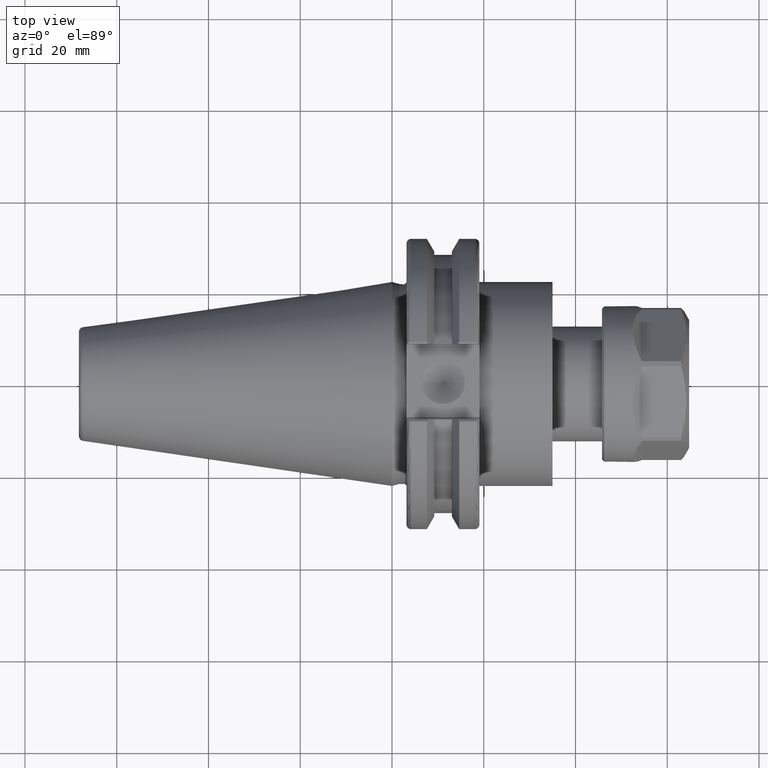
[diagram: clean part render]
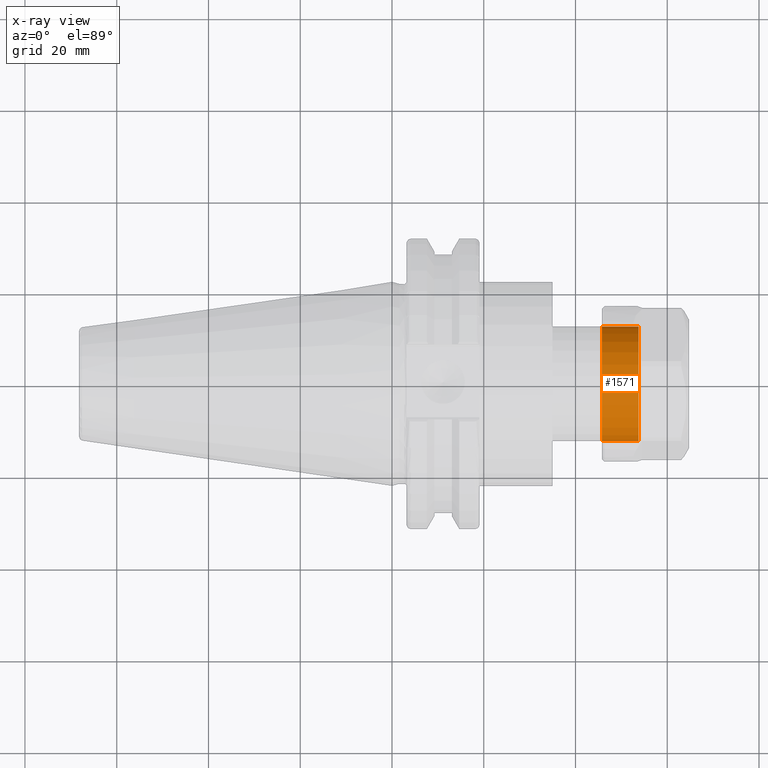
[diagram: x-ray — body ghosted, one internal face saturated and labeled with its STEP entity id]
A machine part, top view, then the same camera in x-ray: the body is ghosted and one INTERNAL B-rep face — a face not visible from any outside direction — is saturated and labeled: STEP entity #1571.
In plain terms, the highlighted cylindrical surface (bore or boss wall) has radius 12.5 mm, axis along (-1, 0, 0).
Its self-contained STEP definition (entity closure, byte-faithful):
#279=FACE_OUTER_BOUND('',#383,.T.);
#383=EDGE_LOOP('',(#1456,#1457,#1458,#1459));
#484=LINE('',#2871,#583);
#583=VECTOR('',#2265,12.5);
#656=CIRCLE('',#1817,12.5);
#657=CIRCLE('',#1818,12.5);
#801=VERTEX_POINT('',#2868);
#802=VERTEX_POINT('',#2870);
#1020=EDGE_CURVE('',#801,#801,#656,.T.);
#1021=EDGE_CURVE('',#801,#802,#484,.T.);
#1022=EDGE_CURVE('',#802,#802,#657,.T.);
#1456=ORIENTED_EDGE('',*,*,#1020,.F.);
#1457=ORIENTED_EDGE('',*,*,#1021,.T.);
#1458=ORIENTED_EDGE('',*,*,#1022,.T.);
#1459=ORIENTED_EDGE('',*,*,#1021,.F.);
#1482=CYLINDRICAL_SURFACE('',#1816,12.5);
#1571=ADVANCED_FACE('',(#279),#1482,.T.);
#1816=AXIS2_PLACEMENT_3D('',#2867,#2261,#2262);
#1817=AXIS2_PLACEMENT_3D('',#2869,#2263,#2264);
#1818=AXIS2_PLACEMENT_3D('',#2872,#2266,#2267);
#2261=DIRECTION('center_axis',(-1.,0.,0.));
#2262=DIRECTION('ref_axis',(0.,-1.,0.));
#2263=DIRECTION('center_axis',(-1.,0.,0.));
#2264=DIRECTION('ref_axis',(0.,1.,0.));
#2265=DIRECTION('',(1.,0.,0.));
#2266=DIRECTION('center_axis',(-1.,0.,0.));
#2267=DIRECTION('ref_axis',(0.,1.,0.));
#2867=CARTESIAN_POINT('Origin',(-9.5,0.,0.));
#2868=CARTESIAN_POINT('',(-9.5,12.5,-1.53080849893419E-15));
#2869=CARTESIAN_POINT('Origin',(-9.5,0.,0.));
#2870=CARTESIAN_POINT('',(-1.5,12.5,-1.53080849893419E-15));
#2871=CARTESIAN_POINT('',(-9.5,12.5,-1.53080849893419E-15));
#2872=CARTESIAN_POINT('Origin',(-1.5,0.,0.));